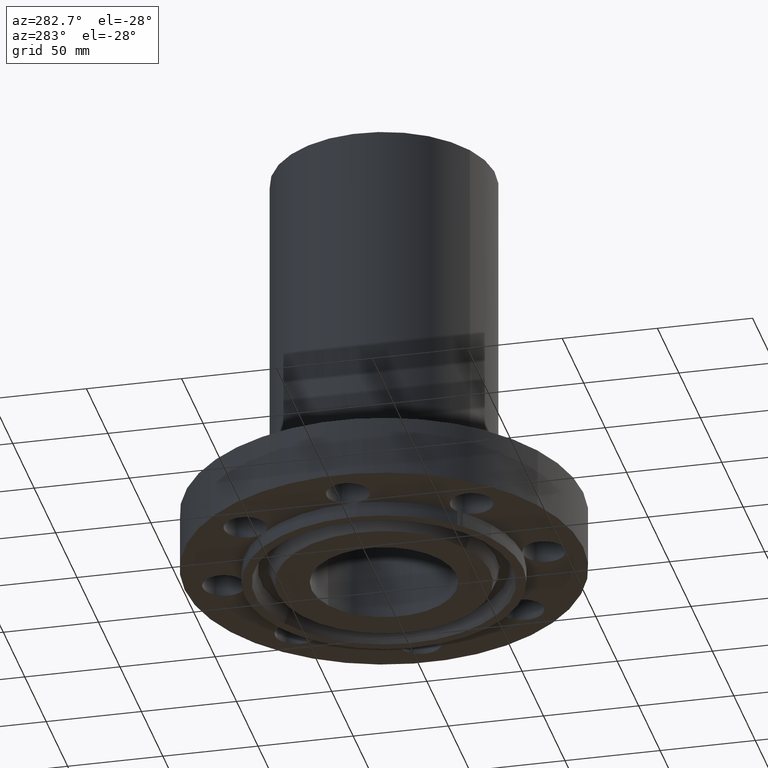
[diagram: clean part render]
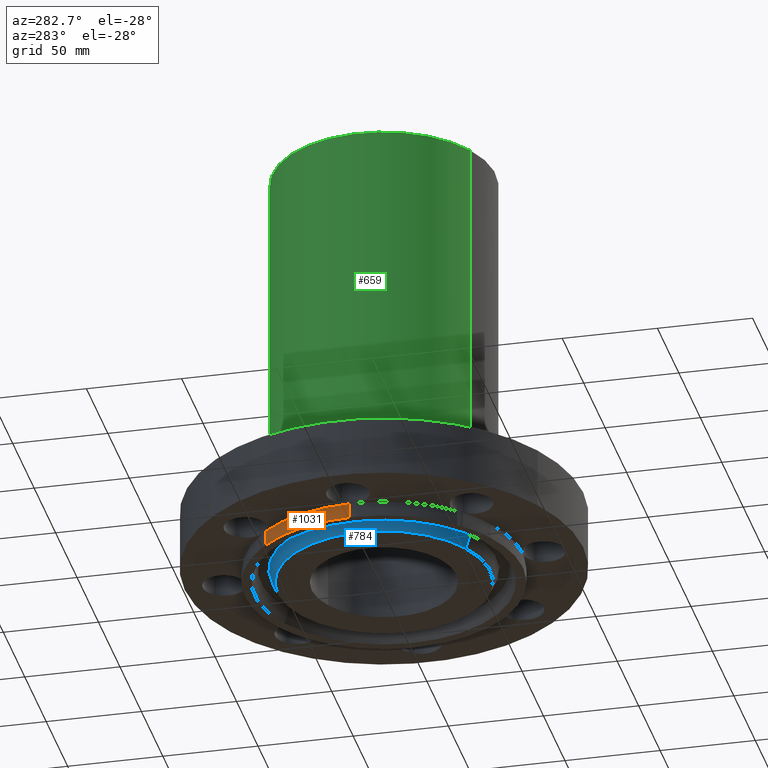
[diagram: same view with three faces highlighted in distinct colors, each labeled with its STEP entity id]
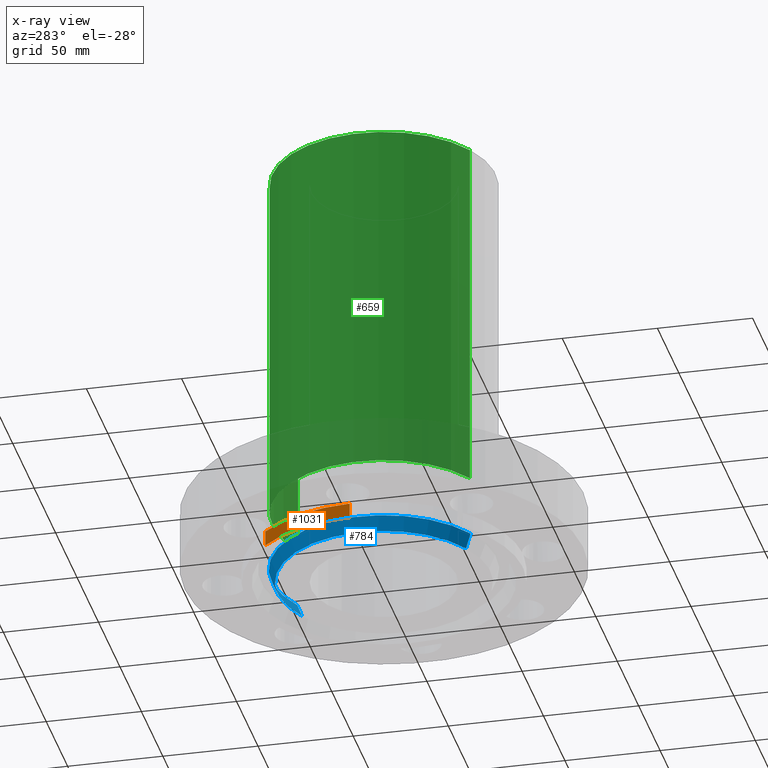
[diagram: x-ray of the same camera — body ghosted, the three highlighted faces saturated]
A machine part, auxiliary view with three faces highlighted in distinct colors.
The next image is the same camera in x-ray (body ghosted, the three faces saturated) — at least one of them is partly hidden behind the body in this view.
Their STEP definitions:

[orange] entity #1031 — the highlighted cylindrical surface (partial cylindrical patch) has radius 73.025 mm, axis along (0, 0, -1).
#275=AXIS2_PLACEMENT_3D('Circle Axis2P3D',#273,#274,$) ;
#500=AXIS2_PLACEMENT_3D('Circle Axis2P3D',#498,#499,$) ;
#938=AXIS2_PLACEMENT_3D('Cylinder Axis2P3D',#935,#936,#937) ;
#270=CARTESIAN_POINT('Vertex',(-2.07605138692,1.98887798493,3.46398325597E-016)) ;
#273=CARTESIAN_POINT('Axis2P3D Location',(0.,0.,0.)) ;
#277=CARTESIAN_POINT('Vertex',(-2.87433912388,0.0616409036851,3.46398325597E-016)) ;
#495=CARTESIAN_POINT('Vertex',(-2.87433912388,0.0616409036851,-0.313000000001)) ;
#498=CARTESIAN_POINT('Axis2P3D Location',(0.,0.,-0.313000000001)) ;
#502=CARTESIAN_POINT('Vertex',(-2.07605138692,1.98887798493,-0.313000000001)) ;
#935=CARTESIAN_POINT('Axis2P3D Location',(0.,0.,4.21850000002)) ;
#1015=CARTESIAN_POINT('Line Origine',(-2.07605138692,1.98887798493,-0.156500000001)) ;
#1020=CARTESIAN_POINT('Line Origine',(-2.87433912388,0.0616409036851,-0.156500000001)) ;
#274=DIRECTION('Axis2P3D Direction',(0.,0.,-0.0393700787402)) ;
#499=DIRECTION('Axis2P3D Direction',(0.,0.,-0.0393700787402)) ;
#936=DIRECTION('Axis2P3D Direction',(0.,0.,-0.0393700787402)) ;
#937=DIRECTION('Axis2P3D XDirection',(0.0284293240248,0.0272355766508,0.)) ;
#1016=DIRECTION('Vector Direction',(0.,0.,-0.0393700787402)) ;
#1021=DIRECTION('Vector Direction',(0.,0.,-0.0393700787402)) ;
#1017=VECTOR('Line Direction',#1016,0.0393700787402) ;
#1022=VECTOR('Line Direction',#1021,0.0393700787402) ;
#1026=ORIENTED_EDGE('',*,*,#1019,.T.) ;
#1027=ORIENTED_EDGE('',*,*,#504,.F.) ;
#1028=ORIENTED_EDGE('',*,*,#1024,.F.) ;
#1029=ORIENTED_EDGE('',*,*,#279,.T.) ;
#1031=ADVANCED_FACE('PartBody',(#1030),#939,.T.) ;
#276=CIRCLE('generated circle',#275,2.87500000001) ;
#501=CIRCLE('generated circle',#500,2.87500000001) ;
#939=CYLINDRICAL_SURFACE('generated cylinder',#938,2.87500000001) ;
#279=EDGE_CURVE('',#278,#271,#276,.T.) ;
#504=EDGE_CURVE('',#496,#503,#501,.T.) ;
#1019=EDGE_CURVE('',#271,#503,#1018,.T.) ;
#1024=EDGE_CURVE('',#278,#496,#1023,.T.) ;
#1025=EDGE_LOOP('',(#1026,#1027,#1028,#1029)) ;
#1030=FACE_OUTER_BOUND('',#1025,.T.) ;
#1018=LINE('Line',#1015,#1017) ;
#1023=LINE('Line',#1020,#1022) ;
#271=VERTEX_POINT('',#270) ;
#278=VERTEX_POINT('',#277) ;
#496=VERTEX_POINT('',#495) ;
#503=VERTEX_POINT('',#502) ;

[blue] entity #784 — the highlighted conical surface has half-angle 23 deg.
#733=AXIS2_PLACEMENT_3D('Circle Axis2P3D',#731,#732,$) ;
#757=AXIS2_PLACEMENT_3D('Cone Axis2P3D',#754,#755,#756) ;
#768=AXIS2_PLACEMENT_3D('Circle Axis2P3D',#766,#767,$) ;
#731=CARTESIAN_POINT('Axis2P3D Location',(0.,0.,-0.313000000001)) ;
#735=CARTESIAN_POINT('Vertex',(-1.05617446155,-1.93331438385,-0.313000000001)) ;
#737=CARTESIAN_POINT('Vertex',(1.05617446155,1.93331438385,-0.313000000001)) ;
#754=CARTESIAN_POINT('Axis2P3D Location',(0.,0.,-0.313000000001)) ;
#759=CARTESIAN_POINT('Line Origine',(-1.08610102335,-1.98809458777,-0.165943667509)) ;
#763=CARTESIAN_POINT('Vertex',(-1.11602758514,-2.0428747917,-0.0188873350169)) ;
#766=CARTESIAN_POINT('Axis2P3D Location',(0.,0.,-0.0188873350169)) ;
#770=CARTESIAN_POINT('Vertex',(1.11602758514,2.0428747917,-0.0188873350169)) ;
#773=CARTESIAN_POINT('Line Origine',(1.08610102335,1.98809458777,-0.165943667509)) ;
#732=DIRECTION('Axis2P3D Direction',(0.,0.,-0.0393700787402)) ;
#755=DIRECTION('Axis2P3D Direction',(-0.,-0.,0.0393700787402)) ;
#756=DIRECTION('Axis2P3D XDirection',(-0.0188750212049,-0.0345504945626,0.)) ;
#760=DIRECTION('Vector Direction',(-0.00737505833565,-0.0134999537303,0.0362403485611)) ;
#767=DIRECTION('Axis2P3D Direction',(-0.,0.,0.0393700787402)) ;
#774=DIRECTION('Vector Direction',(0.00737505833565,0.0134999537303,0.0362403485611)) ;
#761=VECTOR('Line Direction',#760,0.0393700787402) ;
#775=VECTOR('Line Direction',#774,0.0393700787402) ;
#779=ORIENTED_EDGE('',*,*,#739,.F.) ;
#780=ORIENTED_EDGE('',*,*,#765,.T.) ;
#781=ORIENTED_EDGE('',*,*,#772,.T.) ;
#782=ORIENTED_EDGE('',*,*,#777,.F.) ;
#784=ADVANCED_FACE('PartBody',(#783),#758,.T.) ;
#734=CIRCLE('generated circle',#733,2.20300000001) ;
#769=CIRCLE('generated circle',#768,2.32784341942) ;
#758=CONICAL_SURFACE('Cone',#757,2.20300000001,0.401425727959) ;
#739=EDGE_CURVE('',#736,#738,#734,.T.) ;
#765=EDGE_CURVE('',#736,#764,#762,.T.) ;
#772=EDGE_CURVE('',#764,#771,#769,.F.) ;
#777=EDGE_CURVE('',#738,#771,#776,.T.) ;
#778=EDGE_LOOP('',(#779,#780,#781,#782)) ;
#783=FACE_OUTER_BOUND('',#778,.T.) ;
#762=LINE('Line',#759,#761) ;
#776=LINE('Line',#773,#775) ;
#736=VERTEX_POINT('',#735) ;
#738=VERTEX_POINT('',#737) ;
#764=VERTEX_POINT('',#763) ;
#771=VERTEX_POINT('',#770) ;

[green] entity #659 — the highlighted cylindrical surface (partial cylindrical patch) has radius 58.674 mm, axis along (0, 0, -1).
#606=AXIS2_PLACEMENT_3D('Cylinder Axis2P3D',#603,#604,#605) ;
#645=AXIS2_PLACEMENT_3D('Circle Axis2P3D',#643,#644,$) ;
#650=AXIS2_PLACEMENT_3D('Circle Axis2P3D',#648,#649,$) ;
#603=CARTESIAN_POINT('Axis2P3D Location',(0.,0.,4.21850000002)) ;
#612=CARTESIAN_POINT('Vertex',(1.10747299418,2.02721571797,1.25)) ;
#614=CARTESIAN_POINT('Vertex',(-1.10747299418,-2.02721571797,1.25)) ;
#617=CARTESIAN_POINT('Line Origine',(1.10747299418,2.02721571797,5.00000000002)) ;
#621=CARTESIAN_POINT('Vertex',(1.10747299418,2.02721571797,8.75000000004)) ;
#628=CARTESIAN_POINT('Vertex',(-1.10747299418,-2.02721571797,8.75000000004)) ;
#631=CARTESIAN_POINT('Line Origine',(-1.10747299418,-2.02721571797,5.00000000002)) ;
#643=CARTESIAN_POINT('Axis2P3D Location',(0.,0.,1.25)) ;
#648=CARTESIAN_POINT('Axis2P3D Location',(0.,0.,8.75000000004)) ;
#604=DIRECTION('Axis2P3D Direction',(0.,0.,-0.0393700787402)) ;
#605=DIRECTION('Axis2P3D XDirection',(-0.0188750212049,-0.0345504945626,0.)) ;
#618=DIRECTION('Vector Direction',(0.,0.,-0.0393700787402)) ;
#632=DIRECTION('Vector Direction',(0.,0.,-0.0393700787402)) ;
#644=DIRECTION('Axis2P3D Direction',(0.,0.,-0.0393700787402)) ;
#649=DIRECTION('Axis2P3D Direction',(0.,0.,-0.0393700787402)) ;
#619=VECTOR('Line Direction',#618,0.0393700787402) ;
#633=VECTOR('Line Direction',#632,0.0393700787402) ;
#654=ORIENTED_EDGE('',*,*,#647,.F.) ;
#655=ORIENTED_EDGE('',*,*,#635,.T.) ;
#656=ORIENTED_EDGE('',*,*,#652,.T.) ;
#657=ORIENTED_EDGE('',*,*,#623,.F.) ;
#659=ADVANCED_FACE('PartBody',(#658),#607,.T.) ;
#646=CIRCLE('generated circle',#645,2.31000000001) ;
#651=CIRCLE('generated circle',#650,2.31000000001) ;
#607=CYLINDRICAL_SURFACE('generated cylinder',#606,2.31000000001) ;
#623=EDGE_CURVE('',#613,#622,#620,.F.) ;
#635=EDGE_CURVE('',#615,#629,#634,.F.) ;
#647=EDGE_CURVE('',#615,#613,#646,.T.) ;
#652=EDGE_CURVE('',#629,#622,#651,.T.) ;
#653=EDGE_LOOP('',(#654,#655,#656,#657)) ;
#658=FACE_OUTER_BOUND('',#653,.T.) ;
#620=LINE('Line',#617,#619) ;
#634=LINE('Line',#631,#633) ;
#613=VERTEX_POINT('',#612) ;
#615=VERTEX_POINT('',#614) ;
#622=VERTEX_POINT('',#621) ;
#629=VERTEX_POINT('',#628) ;